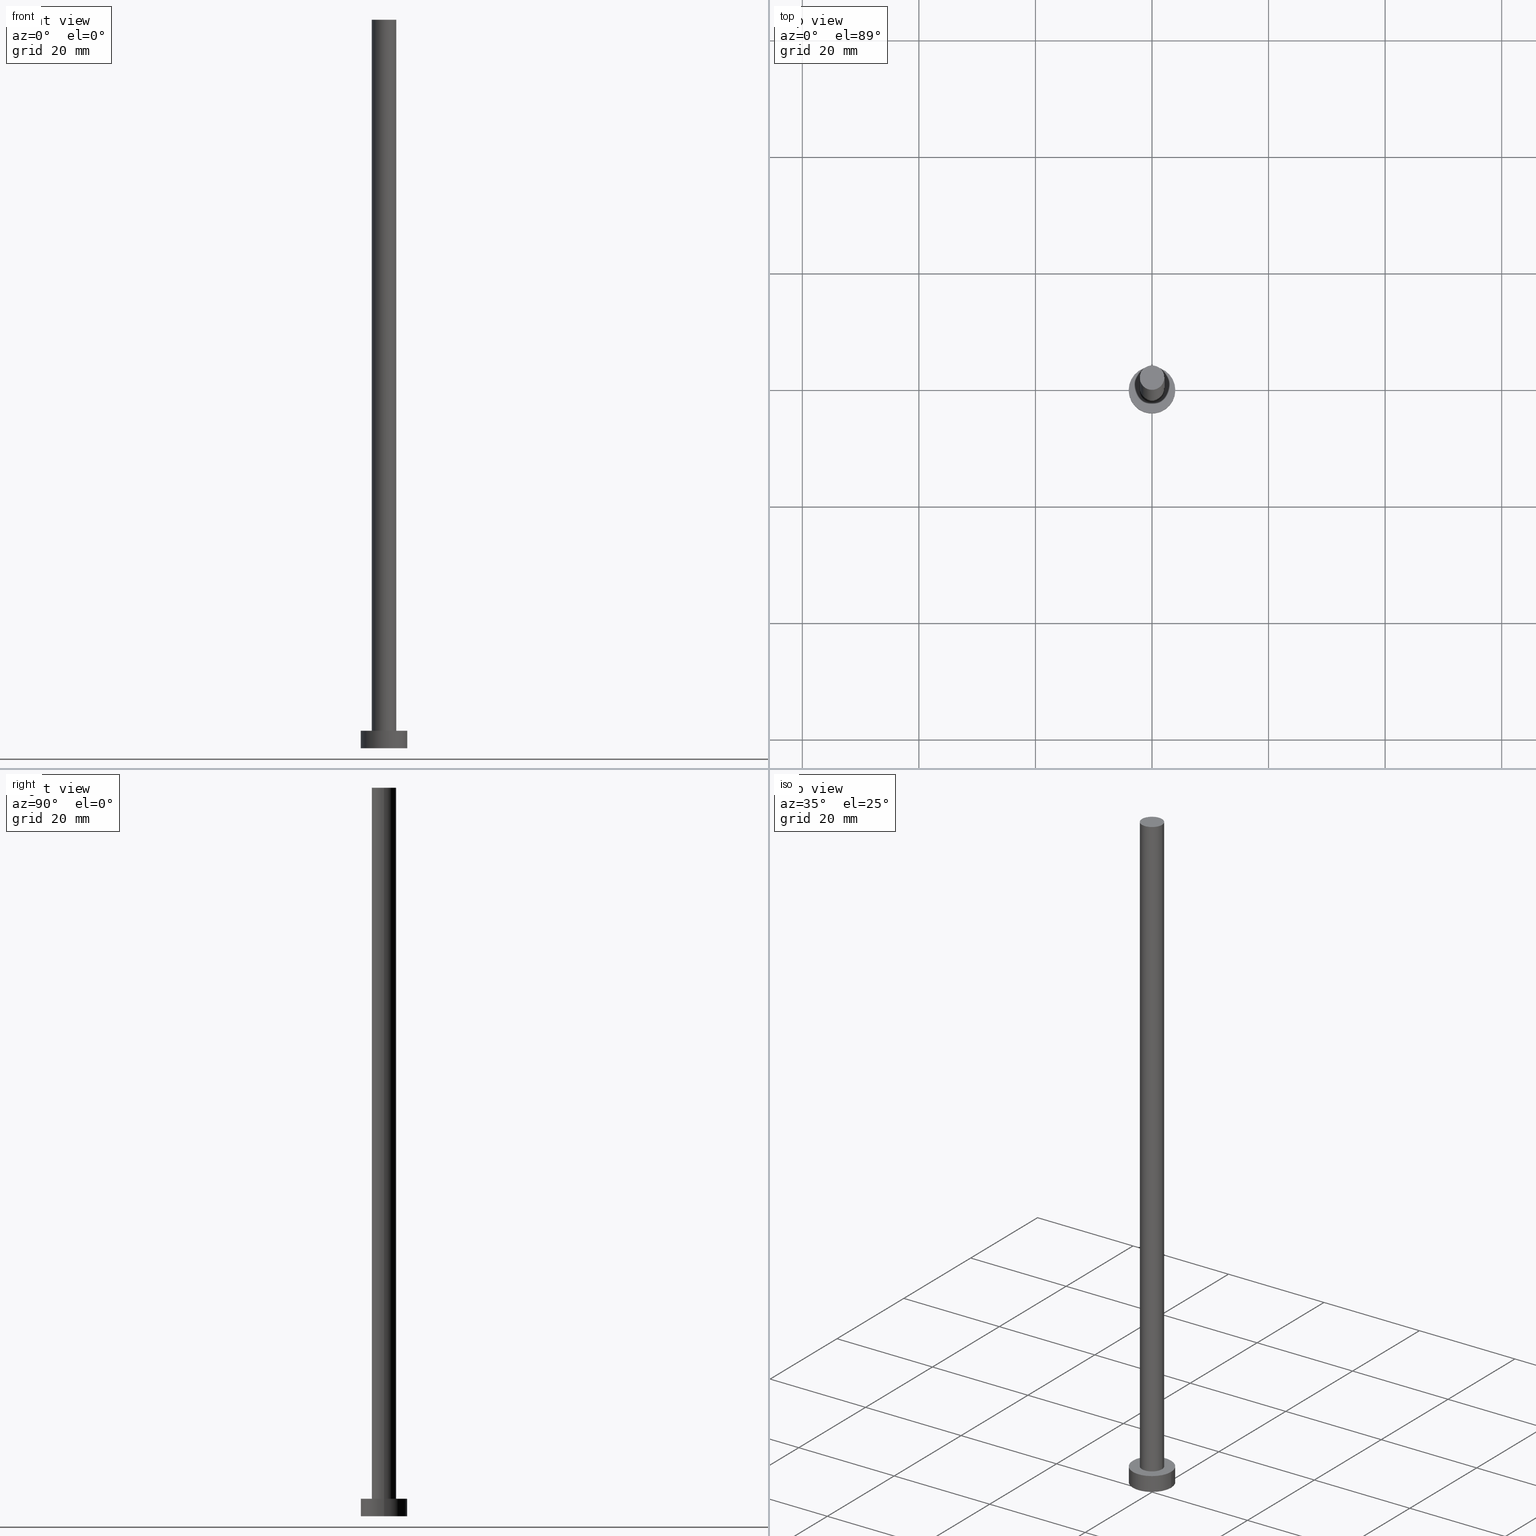
[diagram: canonical four-view strip — front | top / right | iso, engineering-drawing reading convention]
A machine part, canonical four-view strip (front | top / right | iso — engineering-drawing reading convention). The complete STEP part file that produces these views, byte-faithful:
ISO-10303-21;
HEADER;
FILE_DESCRIPTION (( 'STEP AP203' ),
    '1' );
FILE_NAME ('9748.STEP',
    '2023-02-13T15:06:25',
    ( '' ),
    ( '' ),
    'SwSTEP 2.0',
    'SolidWorks 2019',
    '' );
FILE_SCHEMA (( 'CONFIG_CONTROL_DESIGN' ));
ENDSEC;

DATA;
#1 = ORIENTED_EDGE ( 'NONE', *, *, #232, .F. ) ;
#2 = EDGE_LOOP ( 'NONE', ( #97, #39 ) ) ;
#3 = EDGE_CURVE ( 'NONE', #140, #139, #151, .T. ) ;
#4 = VECTOR ( 'NONE', #52, 1000.000000000000000 ) ;
#5 = PRODUCT_DEFINITION ( 'NEZN�M�', '', #118, #85 ) ;
#6 = COORDINATED_UNIVERSAL_TIME_OFFSET ( 1, 0, .AHEAD. ) ;
#7 = LOCAL_TIME ( 16, 6, 25.00000000000000000, #79 ) ;
#8 = PERSON_AND_ORGANIZATION ( #102, #28 ) ;
#9 = AXIS2_PLACEMENT_3D ( 'NONE', #113, #32, #20 ) ;
#10 = COORDINATED_UNIVERSAL_TIME_OFFSET ( 1, 0, .AHEAD. ) ;
#11 = CARTESIAN_POINT ( 'NONE',  ( -2.100000000000000089, 0.000000000000000000, 3.000000000000000000 ) ) ;
#12 = DATE_AND_TIME ( #84, #160 ) ;
#13 = CARTESIAN_POINT ( 'NONE',  ( -4.000000000000000000, 0.000000000000000000, 3.000000000000000000 ) ) ;
#14 = DIRECTION ( 'NONE',  ( -1.000000000000000000, 0.000000000000000000, 0.000000000000000000 ) ) ;
#15 = CARTESIAN_POINT ( 'NONE',  ( 0.000000000000000000, 0.000000000000000000, 0.000000000000000000 ) ) ;
#16 =( NAMED_UNIT ( * ) PLANE_ANGLE_UNIT ( ) SI_UNIT ( $, .RADIAN. ) );
#17 = DIRECTION ( 'NONE',  ( 1.000000000000000000, 0.000000000000000000, 0.000000000000000000 ) ) ;
#18 = DIRECTION ( 'NONE',  ( -0.000000000000000000, -0.000000000000000000, -1.000000000000000000 ) ) ;
#19 = AXIS2_PLACEMENT_3D ( 'NONE', #34, #110, #214 ) ;
#20 = DIRECTION ( 'NONE',  ( 1.000000000000000000, 0.000000000000000000, -0.000000000000000000 ) ) ;
#21 = EDGE_CURVE ( 'NONE', #139, #140, #204, .T. ) ;
#22 = CIRCLE ( 'NONE', #19, 2.100000000000000089 ) ;
#23 = ORIENTED_EDGE ( 'NONE', *, *, #136, .T. ) ;
#24 = PRODUCT_RELATED_PRODUCT_CATEGORY ( 'detail', '', ( #193 ) ) ;
#25 = DATE_TIME_ROLE ( 'classification_date' ) ;
#26 = APPROVAL_ROLE ( '' ) ;
#27 = LOCAL_TIME ( 16, 6, 25.00000000000000000, #10 ) ;
#28 = ORGANIZATION ( 'NEUR�EN�', 'NEUR�EN�', '' ) ;
#29 = COORDINATED_UNIVERSAL_TIME_OFFSET ( 1, 0, .AHEAD. ) ;
#30 = PERSON_AND_ORGANIZATION ( #102, #28 ) ;
#31 = DIRECTION ( 'NONE',  ( 1.000000000000000000, 0.000000000000000000, 0.000000000000000000 ) ) ;
#32 = DIRECTION ( 'NONE',  ( 0.000000000000000000, 0.000000000000000000, 1.000000000000000000 ) ) ;
#33 = PERSON_AND_ORGANIZATION_ROLE ( 'design_supplier' ) ;
#34 = CARTESIAN_POINT ( 'NONE',  ( 0.000000000000000000, 0.000000000000000000, 3.000000000000000000 ) ) ;
#35 = PLANE ( 'NONE',  #48 ) ;
#36 = EDGE_LOOP ( 'NONE', ( #73, #175 ) ) ;
#37 = DIRECTION ( 'NONE',  ( 0.000000000000000000, 0.000000000000000000, 1.000000000000000000 ) ) ;
#38 = CARTESIAN_POINT ( 'NONE',  ( 0.000000000000000000, 0.000000000000000000, 3.000000000000000000 ) ) ;
#39 = ORIENTED_EDGE ( 'NONE', *, *, #219, .F. ) ;
#40 = ORIENTED_EDGE ( 'NONE', *, *, #21, .F. ) ;
#41 = ORIENTED_EDGE ( 'NONE', *, *, #162, .F. ) ;
#42 = ADVANCED_FACE ( 'NONE', ( #190, #172 ), #194, .T. ) ;
#43 = EDGE_LOOP ( 'NONE', ( #77, #41, #60, #23 ) ) ;
#44 = PERSON_AND_ORGANIZATION ( #102, #28 ) ;
#45 = DATE_AND_TIME ( #122, #7 ) ;
#46 = ADVANCED_FACE ( 'NONE', ( #148 ), #215, .T. ) ;
#47 = CC_DESIGN_DATE_AND_TIME_ASSIGNMENT ( #12, #83, ( #5 ) ) ;
#48 = AXIS2_PLACEMENT_3D ( 'NONE', #111, #152, #208 ) ;
#49 = APPROVAL ( #104, 'NEUR�EN�' ) ;
#50 =( LENGTH_UNIT ( ) NAMED_UNIT ( * ) SI_UNIT ( .MILLI., .METRE. ) );
#51 = CYLINDRICAL_SURFACE ( 'NONE', #63, 2.100000000000000089 ) ;
#52 = DIRECTION ( 'NONE',  ( -0.000000000000000000, -0.000000000000000000, -1.000000000000000000 ) ) ;
#53 = AXIS2_PLACEMENT_3D ( 'NONE', #38, #93, #249 ) ;
#54 = DIRECTION ( 'NONE',  ( -0.000000000000000000, -0.000000000000000000, -1.000000000000000000 ) ) ;
#55 = CARTESIAN_POINT ( 'NONE',  ( 0.000000000000000000, 0.000000000000000000, 125.0000000000000000 ) ) ;
#56 = CARTESIAN_POINT ( 'NONE',  ( 0.000000000000000000, 0.000000000000000000, 3.000000000000000000 ) ) ;
#57 = DIRECTION ( 'NONE',  ( 0.000000000000000000, 0.000000000000000000, 1.000000000000000000 ) ) ;
#58 = AXIS2_PLACEMENT_3D ( 'NONE', #15, #168, #17 ) ;
#59 = EDGE_LOOP ( 'NONE', ( #222, #40, #157, #221 ) ) ;
#60 = ORIENTED_EDGE ( 'NONE', *, *, #232, .T. ) ;
#61 = VERTEX_POINT ( 'NONE', #153 ) ;
#62 = APPROVAL_DATE_TIME ( #100, #95 ) ;
#63 = AXIS2_PLACEMENT_3D ( 'NONE', #88, #166, #211 ) ;
#64 = EDGE_CURVE ( 'NONE', #75, #200, #207, .T. ) ;
#65 = EDGE_CURVE ( 'NONE', #61, #238, #197, .T. ) ;
#66 = CARTESIAN_POINT ( 'NONE',  ( 0.000000000000000000, 0.000000000000000000, 0.000000000000000000 ) ) ;
#67 = DATE_AND_TIME ( #245, #27 ) ;
#68 = DIRECTION ( 'NONE',  ( -0.000000000000000000, -0.000000000000000000, -1.000000000000000000 ) ) ;
#69 = CARTESIAN_POINT ( 'NONE',  ( 2.100000000000000089, 2.571758278209441464E-16, 125.0000000000000000 ) ) ;
#70 = LOCAL_TIME ( 16, 6, 25.00000000000000000, #29 ) ;
#71 = DIRECTION ( 'NONE',  ( 1.000000000000000000, 0.000000000000000000, 0.000000000000000000 ) ) ;
#72 = PRODUCT_DEFINITION_SHAPE ( 'NONE', 'NONE',  #5 ) ;
#73 = ORIENTED_EDGE ( 'NONE', *, *, #114, .F. ) ;
#74 = DIRECTION ( 'NONE',  ( -1.000000000000000000, 0.000000000000000000, 0.000000000000000000 ) ) ;
#75 = VERTEX_POINT ( 'NONE', #130 ) ;
#76 = EDGE_LOOP ( 'NONE', ( #154, #199, #156, #1 ) ) ;
#77 = ORIENTED_EDGE ( 'NONE', *, *, #64, .F. ) ;
#78 = AXIS2_PLACEMENT_3D ( 'NONE', #133, #37, #71 ) ;
#79 = COORDINATED_UNIVERSAL_TIME_OFFSET ( 1, 0, .AHEAD. ) ;
#80 = APPROVAL_PERSON_ORGANIZATION ( #246, #49, #126 ) ;
#81 = APPROVAL_STATUS ( 'not_yet_approved' ) ;
#82 = CC_DESIGN_PERSON_AND_ORGANIZATION_ASSIGNMENT ( #163, #186, ( #5 ) ) ;
#83 = DATE_TIME_ROLE ( 'creation_date' ) ;
#84 = CALENDAR_DATE ( 2023, 13, 2 ) ;
#85 = DESIGN_CONTEXT ( 'detailed design', #123, 'design' ) ;
#86 = CARTESIAN_POINT ( 'NONE',  ( 0.000000000000000000, 0.000000000000000000, 3.000000000000000000 ) ) ;
#87 = APPLICATION_PROTOCOL_DEFINITION ( 'international standard', 'config_control_design', 1994, #123 ) ;
#88 = CARTESIAN_POINT ( 'NONE',  ( 0.000000000000000000, 0.000000000000000000, 125.0000000000000000 ) ) ;
#89 = DIRECTION ( 'NONE',  ( 1.000000000000000000, 0.000000000000000000, 0.000000000000000000 ) ) ;
#90 = FACE_OUTER_BOUND ( 'NONE', #135, .T. ) ;
#91 = CARTESIAN_POINT ( 'NONE',  ( 2.100000000000000089, 2.571758278209441464E-16, 125.0000000000000000 ) ) ;
#92 = VECTOR ( 'NONE', #128, 1000.000000000000000 ) ;
#93 = DIRECTION ( 'NONE',  ( 0.000000000000000000, 0.000000000000000000, 1.000000000000000000 ) ) ;
#94 = DIRECTION ( 'NONE',  ( 1.000000000000000000, 0.000000000000000000, 0.000000000000000000 ) ) ;
#95 = APPROVAL ( #81, 'NEUR�EN�' ) ;
#96 = CC_DESIGN_SECURITY_CLASSIFICATION ( #183, ( #118 ) ) ;
#97 = ORIENTED_EDGE ( 'NONE', *, *, #136, .F. ) ;
#98 = VERTEX_POINT ( 'NONE', #13 ) ;
#99 = AXIS2_PLACEMENT_3D ( 'NONE', #217, #196, #31 ) ;
#100 = DATE_AND_TIME ( #143, #223 ) ;
#101 = CALENDAR_DATE ( 2023, 13, 2 ) ;
#102 = PERSON ( 'NEUR�EN�', 'NEUR�EN�', 'NEUR�EN�', ('NEUR�EN�'), ('NEUR�EN�'), ('NEUR�EN�') ) ;
#103 = PERSON_AND_ORGANIZATION ( #102, #28 ) ;
#104 = APPROVAL_STATUS ( 'not_yet_approved' ) ;
#105 = PERSON_AND_ORGANIZATION ( #102, #28 ) ;
#106 = DIRECTION ( 'NONE',  ( 1.000000000000000000, 0.000000000000000000, 0.000000000000000000 ) ) ;
#107 = FACE_OUTER_BOUND ( 'NONE', #76, .T. ) ;
#108 = DIRECTION ( 'NONE',  ( 0.000000000000000000, 0.000000000000000000, 1.000000000000000000 ) ) ;
#109 = ADVANCED_FACE ( 'NONE', ( #90 ), #51, .T. ) ;
#110 = DIRECTION ( 'NONE',  ( 0.000000000000000000, 0.000000000000000000, 1.000000000000000000 ) ) ;
#111 = CARTESIAN_POINT ( 'NONE',  ( 0.000000000000000000, 0.000000000000000000, 125.0000000000000000 ) ) ;
#112 = DIRECTION ( 'NONE',  ( -1.000000000000000000, 0.000000000000000000, 0.000000000000000000 ) ) ;
#113 = CARTESIAN_POINT ( 'NONE',  ( 0.000000000000000000, 0.000000000000000000, 0.000000000000000000 ) ) ;
#114 = EDGE_CURVE ( 'NONE', #238, #61, #22, .T. ) ;
#115 = AXIS2_PLACEMENT_3D ( 'NONE', #86, #54, #14 ) ;
#116 = ORIENTED_EDGE ( 'NONE', *, *, #178, .T. ) ;
#117 = EDGE_LOOP ( 'NONE', ( #137, #239 ) ) ;
#118 = PRODUCT_DEFINITION_FORMATION_WITH_SPECIFIED_SOURCE ( 'LIBOVOLN�', '', #193, .NOT_KNOWN. ) ;
#119 = CLOSED_SHELL ( 'NONE', ( #109, #205, #155, #42, #182, #46, #141 ) ) ;
#120 = CC_DESIGN_PERSON_AND_ORGANIZATION_ASSIGNMENT ( #8, #145, ( #193 ) ) ;
#121 = CC_DESIGN_PERSON_AND_ORGANIZATION_ASSIGNMENT ( #103, #147, ( #118 ) ) ;
#122 = CALENDAR_DATE ( 2023, 13, 2 ) ;
#123 = APPLICATION_CONTEXT ( 'configuration controlled 3d designs of mechanical parts and assemblies' ) ;
#124 = AXIS2_PLACEMENT_3D ( 'NONE', #236, #57, #106 ) ;
#125 = COORDINATED_UNIVERSAL_TIME_OFFSET ( 1, 0, .AHEAD. ) ;
#126 = APPROVAL_ROLE ( '' ) ;
#127 = MECHANICAL_CONTEXT ( 'NONE', #252, 'mechanical' ) ;
#128 = DIRECTION ( 'NONE',  ( -0.000000000000000000, -0.000000000000000000, -1.000000000000000000 ) ) ;
#129 = LINE ( 'NONE', #91, #185 ) ;
#130 = CARTESIAN_POINT ( 'NONE',  ( 4.000000000000000000, 4.898587196589412829E-16, 3.000000000000000000 ) ) ;
#131 = DIRECTION ( 'NONE',  ( 0.000000000000000000, 0.000000000000000000, 1.000000000000000000 ) ) ;
#132 = DIRECTION ( 'NONE',  ( 0.000000000000000000, 0.000000000000000000, 1.000000000000000000 ) ) ;
#133 = CARTESIAN_POINT ( 'NONE',  ( 0.000000000000000000, 0.000000000000000000, 3.000000000000000000 ) ) ;
#134 = CARTESIAN_POINT ( 'NONE',  ( 0.000000000000000000, 0.000000000000000000, 125.0000000000000000 ) ) ;
#135 = EDGE_LOOP ( 'NONE', ( #226, #179, #235, #177 ) ) ;
#136 = EDGE_CURVE ( 'NONE', #240, #200, #159, .T. ) ;
#137 = ORIENTED_EDGE ( 'NONE', *, *, #21, .T. ) ;
#138 = CC_DESIGN_APPROVAL ( #176, ( #5 ) ) ;
#139 = VERTEX_POINT ( 'NONE', #250 ) ;
#140 = VERTEX_POINT ( 'NONE', #69 ) ;
#141 = ADVANCED_FACE ( 'NONE', ( #233 ), #35, .T. ) ;
#142 = CC_DESIGN_PERSON_AND_ORGANIZATION_ASSIGNMENT ( #44, #244, ( #183 ) ) ;
#143 = CALENDAR_DATE ( 2023, 13, 2 ) ;
#144 = AXIS2_PLACEMENT_3D ( 'NONE', #165, #131, #94 ) ;
#145 = PERSON_AND_ORGANIZATION_ROLE ( 'design_owner' ) ;
#146 = DIRECTION ( 'NONE',  ( -0.000000000000000000, -0.000000000000000000, -1.000000000000000000 ) ) ;
#147 = PERSON_AND_ORGANIZATION_ROLE ( 'creator' ) ;
#148 = FACE_OUTER_BOUND ( 'NONE', #59, .T. ) ;
#149 = CARTESIAN_POINT ( 'NONE',  ( -2.100000000000000089, 0.000000000000000000, 125.0000000000000000 ) ) ;
#150 = CARTESIAN_POINT ( 'NONE',  ( 4.000000000000000000, 4.898587196589412829E-16, 0.000000000000000000 ) ) ;
#151 = CIRCLE ( 'NONE', #99, 2.100000000000000089 ) ;
#152 = DIRECTION ( 'NONE',  ( 0.000000000000000000, 0.000000000000000000, 1.000000000000000000 ) ) ;
#153 = CARTESIAN_POINT ( 'NONE',  ( 2.100000000000000089, 2.571758278209441464E-16, 3.000000000000000000 ) ) ;
#154 = ORIENTED_EDGE ( 'NONE', *, *, #178, .F. ) ;
#155 = ADVANCED_FACE ( 'NONE', ( #169 ), #254, .T. ) ;
#156 = ORIENTED_EDGE ( 'NONE', *, *, #219, .T. ) ;
#157 = ORIENTED_EDGE ( 'NONE', *, *, #213, .T. ) ;
#158 = ORIENTED_EDGE ( 'NONE', *, *, #162, .T. ) ;
#159 = CIRCLE ( 'NONE', #58, 4.000000000000000000 ) ;
#160 = LOCAL_TIME ( 16, 6, 25.00000000000000000, #125 ) ;
#161 = CIRCLE ( 'NONE', #78, 4.000000000000000000 ) ;
#162 = EDGE_CURVE ( 'NONE', #98, #75, #201, .T. ) ;
#163 = PERSON_AND_ORGANIZATION ( #102, #28 ) ;
#164 =( NAMED_UNIT ( * ) SI_UNIT ( $, .STERADIAN. ) SOLID_ANGLE_UNIT ( ) );
#165 = CARTESIAN_POINT ( 'NONE',  ( 0.000000000000000000, 0.000000000000000000, 0.000000000000000000 ) ) ;
#166 = DIRECTION ( 'NONE',  ( -0.000000000000000000, -0.000000000000000000, -1.000000000000000000 ) ) ;
#167 = LINE ( 'NONE', #149, #4 ) ;
#168 = DIRECTION ( 'NONE',  ( 0.000000000000000000, 0.000000000000000000, 1.000000000000000000 ) ) ;
#169 = FACE_OUTER_BOUND ( 'NONE', #43, .T. ) ;
#170 = CC_DESIGN_APPROVAL ( #95, ( #183 ) ) ;
#171 = APPROVAL_PERSON_ORGANIZATION ( #105, #176, #228 ) ;
#172 = FACE_OUTER_BOUND ( 'NONE', #225, .T. ) ;
#173 = LINE ( 'NONE', #195, #174 ) ;
#174 = VECTOR ( 'NONE', #18, 1000.000000000000000 ) ;
#175 = ORIENTED_EDGE ( 'NONE', *, *, #65, .F. ) ;
#176 = APPROVAL ( #248, 'NEUR�EN�' ) ;
#177 = ORIENTED_EDGE ( 'NONE', *, *, #213, .F. ) ;
#178 = EDGE_CURVE ( 'NONE', #75, #98, #161, .T. ) ;
#179 = ORIENTED_EDGE ( 'NONE', *, *, #237, .T. ) ;
#180 = AXIS2_PLACEMENT_3D ( 'NONE', #251, #216, #89 ) ;
#181 = MANIFOLD_SOLID_BREP ( 'P�idat vysunut�m3', #119 ) ;
#182 = ADVANCED_FACE ( 'NONE', ( #192 ), #188, .F. ) ;
#183 = SECURITY_CLASSIFICATION ( '', '', #202 ) ;
#184 = APPLICATION_PROTOCOL_DEFINITION ( 'international standard', 'config_control_design', 1994, #252 ) ;
#185 = VECTOR ( 'NONE', #146, 1000.000000000000000 ) ;
#186 = PERSON_AND_ORGANIZATION_ROLE ( 'creator' ) ;
#187 = UNCERTAINTY_MEASURE_WITH_UNIT (LENGTH_MEASURE( 1.000000000000000082E-05 ), #50, 'distance_accuracy_value', 'NONE');
#188 = PLANE ( 'NONE',  #9 ) ;
#189 = DIRECTION ( 'NONE',  ( 1.000000000000000000, 0.000000000000000000, 0.000000000000000000 ) ) ;
#190 = FACE_BOUND ( 'NONE', #36, .T. ) ;
#191 = CYLINDRICAL_SURFACE ( 'NONE', #115, 4.000000000000000000 ) ;
#192 = FACE_OUTER_BOUND ( 'NONE', #2, .T. ) ;
#193 = PRODUCT ( '9748', '9748', '', ( #127 ) ) ;
#194 = PLANE ( 'NONE',  #53 ) ;
#195 = CARTESIAN_POINT ( 'NONE',  ( -4.000000000000000000, 0.000000000000000000, 3.000000000000000000 ) ) ;
#196 = DIRECTION ( 'NONE',  ( 0.000000000000000000, 0.000000000000000000, 1.000000000000000000 ) ) ;
#197 = CIRCLE ( 'NONE', #124, 2.100000000000000089 ) ;
#198 = DIRECTION ( 'NONE',  ( -0.000000000000000000, -0.000000000000000000, -1.000000000000000000 ) ) ;
#199 = ORIENTED_EDGE ( 'NONE', *, *, #64, .T. ) ;
#200 = VERTEX_POINT ( 'NONE', #150 ) ;
#201 = CIRCLE ( 'NONE', #180, 4.000000000000000000 ) ;
#202 = SECURITY_CLASSIFICATION_LEVEL ( 'unclassified' ) ;
#203 = PERSON_AND_ORGANIZATION ( #102, #28 ) ;
#204 = CIRCLE ( 'NONE', #224, 2.100000000000000089 ) ;
#205 = ADVANCED_FACE ( 'NONE', ( #107 ), #191, .T. ) ;
#206 = APPROVAL_DATE_TIME ( #67, #49 ) ;
#207 = LINE ( 'NONE', #230, #92 ) ;
#208 = DIRECTION ( 'NONE',  ( 1.000000000000000000, 0.000000000000000000, -0.000000000000000000 ) ) ;
#209 = DATE_AND_TIME ( #101, #70 ) ;
#210 = APPROVAL_PERSON_ORGANIZATION ( #203, #95, #26 ) ;
#211 = DIRECTION ( 'NONE',  ( -1.000000000000000000, 0.000000000000000000, 0.000000000000000000 ) ) ;
#212 = CARTESIAN_POINT ( 'NONE',  ( -4.000000000000000000, 0.000000000000000000, 0.000000000000000000 ) ) ;
#213 = EDGE_CURVE ( 'NONE', #139, #238, #167, .T. ) ;
#214 = DIRECTION ( 'NONE',  ( 1.000000000000000000, 0.000000000000000000, 0.000000000000000000 ) ) ;
#215 = CYLINDRICAL_SURFACE ( 'NONE', #247, 2.100000000000000089 ) ;
#216 = DIRECTION ( 'NONE',  ( 0.000000000000000000, 0.000000000000000000, 1.000000000000000000 ) ) ;
#217 = CARTESIAN_POINT ( 'NONE',  ( 0.000000000000000000, 0.000000000000000000, 125.0000000000000000 ) ) ;
#218 = AXIS2_PLACEMENT_3D ( 'NONE', #66, #108, #189 ) ;
#219 = EDGE_CURVE ( 'NONE', #200, #240, #234, .T. ) ;
#220 = CC_DESIGN_PERSON_AND_ORGANIZATION_ASSIGNMENT ( #30, #33, ( #118 ) ) ;
#221 = ORIENTED_EDGE ( 'NONE', *, *, #114, .T. ) ;
#222 = ORIENTED_EDGE ( 'NONE', *, *, #237, .F. ) ;
#223 = LOCAL_TIME ( 16, 6, 25.00000000000000000, #6 ) ;
#224 = AXIS2_PLACEMENT_3D ( 'NONE', #55, #132, #255 ) ;
#225 = EDGE_LOOP ( 'NONE', ( #158, #116 ) ) ;
#226 = ORIENTED_EDGE ( 'NONE', *, *, #3, .F. ) ;
#227 = ADVANCED_BREP_SHAPE_REPRESENTATION ( '9748', ( #181, #218 ), #253 ) ;
#228 = APPROVAL_ROLE ( '' ) ;
#229 = APPROVAL_DATE_TIME ( #209, #176 ) ;
#230 = CARTESIAN_POINT ( 'NONE',  ( 4.000000000000000000, 4.898587196589412829E-16, 3.000000000000000000 ) ) ;
#231 = CC_DESIGN_APPROVAL ( #49, ( #118 ) ) ;
#232 = EDGE_CURVE ( 'NONE', #98, #240, #173, .T. ) ;
#233 = FACE_OUTER_BOUND ( 'NONE', #117, .T. ) ;
#234 = CIRCLE ( 'NONE', #144, 4.000000000000000000 ) ;
#235 = ORIENTED_EDGE ( 'NONE', *, *, #65, .T. ) ;
#236 = CARTESIAN_POINT ( 'NONE',  ( 0.000000000000000000, 0.000000000000000000, 3.000000000000000000 ) ) ;
#237 = EDGE_CURVE ( 'NONE', #140, #61, #129, .T. ) ;
#238 = VERTEX_POINT ( 'NONE', #11 ) ;
#239 = ORIENTED_EDGE ( 'NONE', *, *, #3, .T. ) ;
#240 = VERTEX_POINT ( 'NONE', #212 ) ;
#241 = SHAPE_DEFINITION_REPRESENTATION ( #72, #227 ) ;
#242 = CC_DESIGN_DATE_AND_TIME_ASSIGNMENT ( #45, #25, ( #183 ) ) ;
#243 = AXIS2_PLACEMENT_3D ( 'NONE', #56, #68, #112 ) ;
#244 = PERSON_AND_ORGANIZATION_ROLE ( 'classification_officer' ) ;
#245 = CALENDAR_DATE ( 2023, 13, 2 ) ;
#246 = PERSON_AND_ORGANIZATION ( #102, #28 ) ;
#247 = AXIS2_PLACEMENT_3D ( 'NONE', #134, #198, #74 ) ;
#248 = APPROVAL_STATUS ( 'not_yet_approved' ) ;
#249 = DIRECTION ( 'NONE',  ( 1.000000000000000000, 0.000000000000000000, -0.000000000000000000 ) ) ;
#250 = CARTESIAN_POINT ( 'NONE',  ( -2.100000000000000089, 0.000000000000000000, 125.0000000000000000 ) ) ;
#251 = CARTESIAN_POINT ( 'NONE',  ( 0.000000000000000000, 0.000000000000000000, 3.000000000000000000 ) ) ;
#252 = APPLICATION_CONTEXT ( 'configuration controlled 3d designs of mechanical parts and assemblies' ) ;
#253 =( GEOMETRIC_REPRESENTATION_CONTEXT ( 3 ) GLOBAL_UNCERTAINTY_ASSIGNED_CONTEXT ( ( #187 ) ) GLOBAL_UNIT_ASSIGNED_CONTEXT ( ( #50, #16, #164 ) ) REPRESENTATION_CONTEXT ( 'NONE', 'WORKASPACE' ) );
#254 = CYLINDRICAL_SURFACE ( 'NONE', #243, 4.000000000000000000 ) ;
#255 = DIRECTION ( 'NONE',  ( 1.000000000000000000, 0.000000000000000000, 0.000000000000000000 ) ) ;
ENDSEC;
END-ISO-10303-21;
